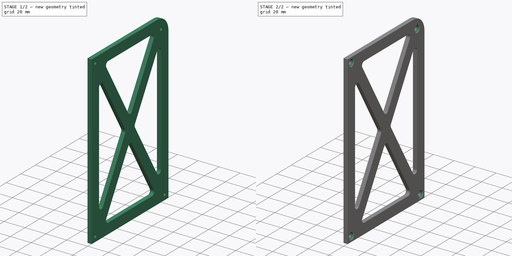
[diagram: build sequence overview — one tinted view per stage of 2, left to right]
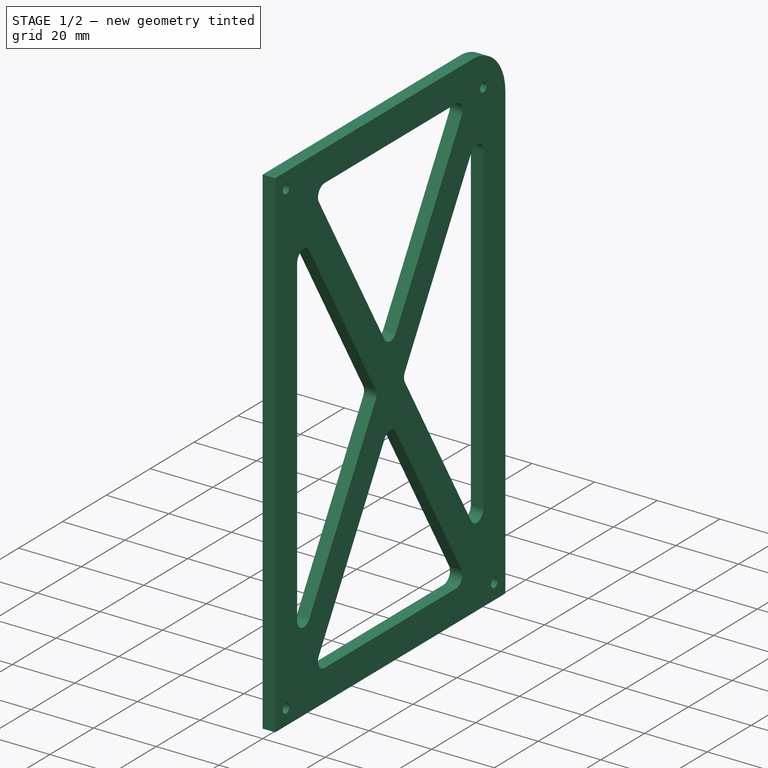
[diagram: stage 1 of 2 — iso view after this stage's code; geometry added in this stage tinted green]
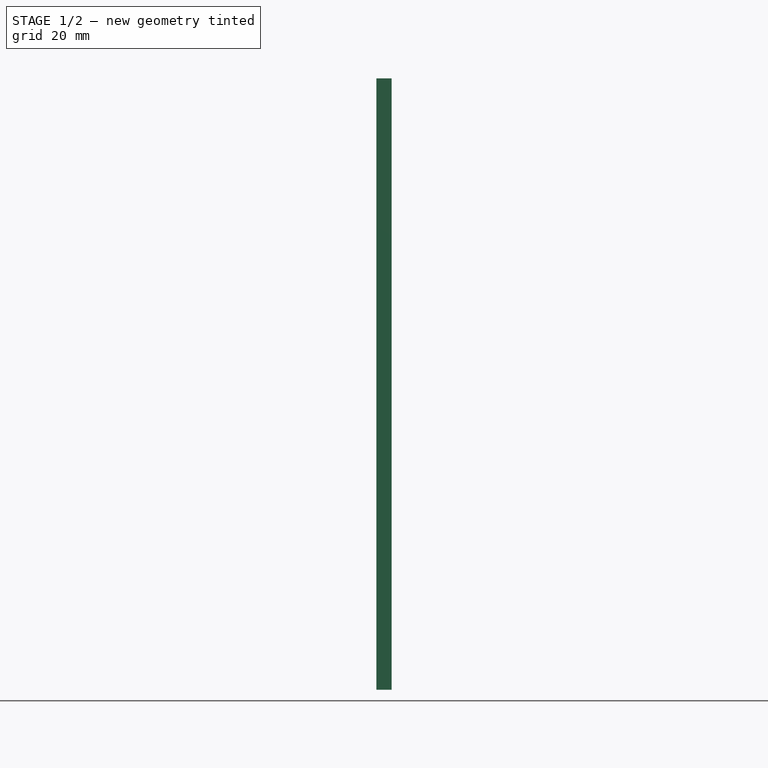
[diagram: stage 1 of 2 — front view after this stage's code; geometry added in this stage tinted green]
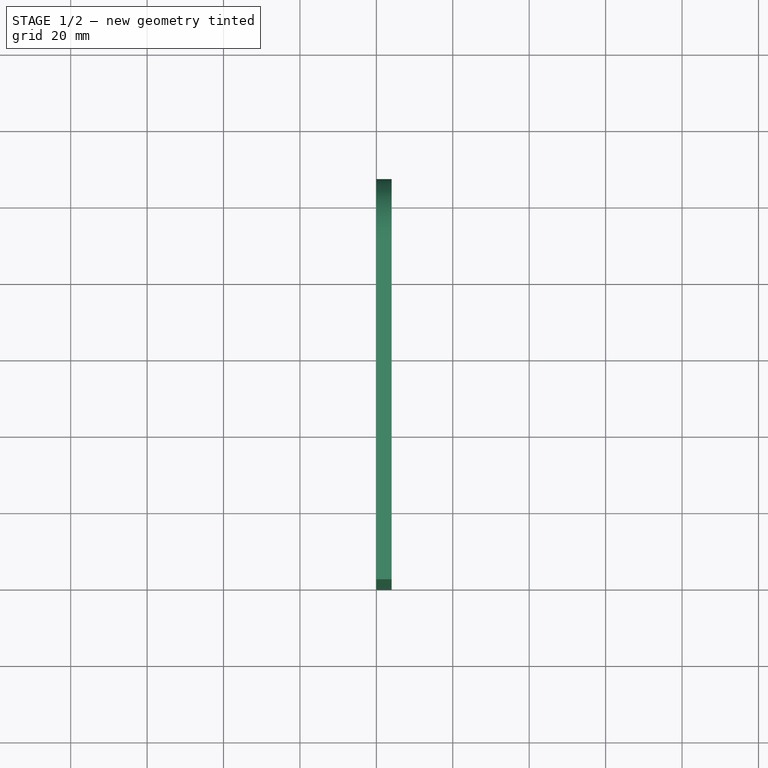
[diagram: stage 1 of 2 — top view after this stage's code; geometry added in this stage tinted green]
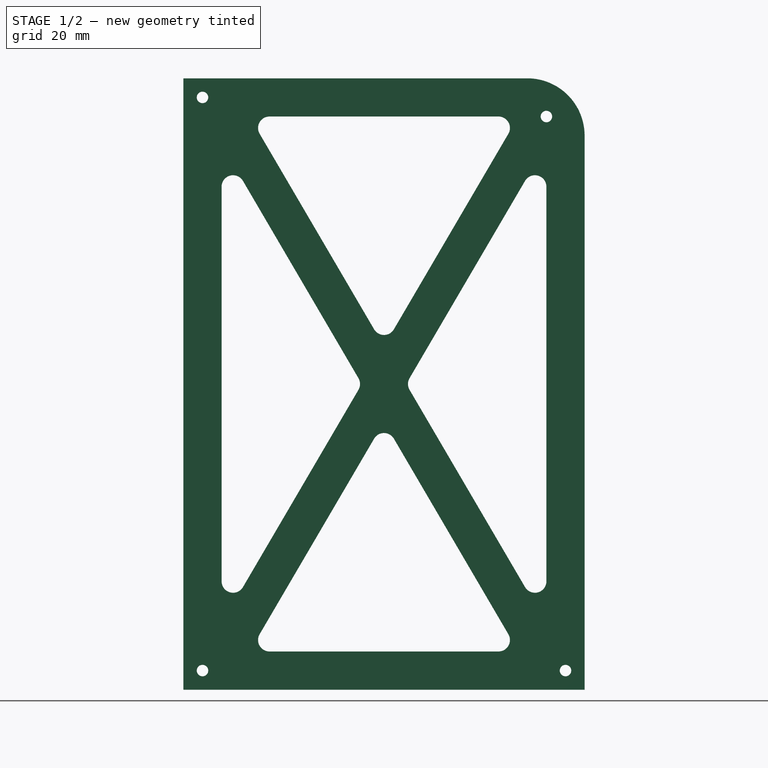
[diagram: stage 1 of 2 — right view after this stage's code; geometry added in this stage tinted green]
FCSTD DOCUMENT  (FreeCAD 1.0R39109 (Git))
Label: sideLeft
License: All rights reserved
LicenseURL: https://en.wikipedia.org/wiki/All_rights_reserved
objects: Sketcher::SketchObject×1, PartDesign::Pad×1, PartDesign::Fillet×1, PartDesign::Chamfer×1, PartDesign::Body×1
note: 12 computed .brp shape members not serialized (recipe doc carries the construction recipe); baked Part::Feature solids carry a one-line shape summary decoded from their .brp

FEATURE [Sketcher::SketchObject] Sketch
  ArcFitTolerance = 1e-06
  AttachmentSupport = -> [YZ_Plane]
  FullyConstrained = true
  MakeInternals = false
  MapMode = 5
  Placement = pos=(0,0,0) rot=(0.57735,0.57735,0.57735;2.0944rad)
  sketch-geometry (35):
    g0: LineSegment StartX=0 StartY=0 StartZ=0 EndX=105 EndY=0 EndZ=0
    g1: LineSegment StartX=0 StartY=160 StartZ=0 EndX=0 EndY=0 EndZ=0
    g2: Circle CenterX=5 CenterY=155 CenterZ=0 NormalX=0 NormalY=0 NormalZ=1 AngleXU=0 Radius=1.5
    g3: Circle CenterX=5 CenterY=5 CenterZ=0 NormalX=0 NormalY=0 NormalZ=1 AngleXU=0 Radius=1.5
    g4: Circle CenterX=100 CenterY=5 CenterZ=0 NormalX=0 NormalY=0 NormalZ=1 AngleXU=0 Radius=1.5
    g5: Circle CenterX=95 CenterY=150 CenterZ=0 NormalX=0 NormalY=0 NormalZ=1 AngleXU=0 Radius=1.5
    g6: LineSegment StartX=17.3087 StartY=10 StartZ=0 EndX=87.6913 EndY=10 EndZ=0
    g7: LineSegment StartX=95 StartY=17.3087 StartZ=0 EndX=95 EndY=142.691 EndZ=0
    g8: LineSegment StartX=87.6913 StartY=150 StartZ=0 EndX=17.3087 EndY=150 EndZ=0
    g9: LineSegment StartX=10 StartY=142.691 StartZ=0 EndX=10 EndY=17.3087 EndZ=0
    g10: ArcOfCircle CenterX=90 CenterY=145 CenterZ=0 NormalX=0 NormalY=0 NormalZ=1 AngleXU=0 Radius=15 StartAngle=8e-16 EndAngle=1.5708
    g11: LineSegment StartX=10 StartY=142.691 StartZ=0 EndX=46.706 EndY=80 EndZ=0
    g12: LineSegment StartX=95 StartY=17.3087 StartZ=0 EndX=58.294 EndY=80 EndZ=0
    g13: LineSegment StartX=87.6913 StartY=150 StartZ=0 EndX=52.5 EndY=89.8957 EndZ=0
    g14: LineSegment StartX=17.3087 StartY=10 StartZ=0 EndX=52.5 EndY=70.1043 EndZ=0
    g15: LineSegment StartX=0 StartY=160 StartZ=0 EndX=90 EndY=160 EndZ=0
    g16: LineSegment StartX=105 StartY=0 StartZ=0 EndX=105 EndY=145 EndZ=0
    g17: LineSegment [constr] StartX=90 StartY=160 StartZ=0 EndX=105 EndY=160 EndZ=0
    g18: LineSegment [constr] StartX=105 StartY=145 StartZ=0 EndX=105 EndY=160 EndZ=0
    g19: LineSegment StartX=46.706 StartY=80 StartZ=0 EndX=10 EndY=17.3087 EndZ=0
    g20: LineSegment StartX=52.5 StartY=89.8957 StartZ=0 EndX=17.3087 EndY=150 EndZ=0
    g21: LineSegment StartX=58.294 StartY=80 StartZ=0 EndX=95 EndY=142.691 EndZ=0
    g22: LineSegment StartX=52.5 StartY=70.1043 StartZ=0 EndX=87.6913 EndY=10 EndZ=0
    g23: LineSegment [constr] StartX=52.5 StartY=70.1043 StartZ=0 EndX=58.294 EndY=80 EndZ=0
    g24: LineSegment [constr] StartX=52.5 StartY=89.8957 StartZ=0 EndX=46.706 EndY=80 EndZ=0
    g25: LineSegment [constr] StartX=46.706 StartY=80 StartZ=0 EndX=52.5 EndY=70.1043 EndZ=0
    g26: LineSegment [constr] StartX=58.294 StartY=80 StartZ=0 EndX=52.5 EndY=89.8957 EndZ=0
    g27: LineSegment [constr] StartX=10 StartY=17.3087 StartZ=0 EndX=10 EndY=10 EndZ=0
    g28: LineSegment [constr] StartX=17.3087 StartY=10 StartZ=0 EndX=10 EndY=10 EndZ=0
    g29: LineSegment [constr] StartX=87.6913 StartY=10 StartZ=0 EndX=95 EndY=10 EndZ=0
    g30: LineSegment [constr] StartX=95 StartY=17.3087 StartZ=0 EndX=95 EndY=10 EndZ=0
    g31: LineSegment [constr] StartX=17.3087 StartY=150 StartZ=0 EndX=10 EndY=150 EndZ=0
    g32: LineSegment [constr] StartX=10 StartY=142.691 StartZ=0 EndX=10 EndY=150 EndZ=0
    g33: LineSegment [constr] StartX=87.6913 StartY=150 StartZ=0 EndX=95 EndY=150 EndZ=0
    g34: LineSegment [constr] StartX=95 StartY=142.691 StartZ=0 EndX=95 EndY=150 EndZ=0
  constraints (99):
    c: Coincident(g1,g0)
    c: Horizontal(g0)
    c: Vertical(g1)
    c: Coincident(g0,g-1)
    c: DistanceY(g1,g1) = 160
    c: DistanceX(g0,g0) = 105
    c: Diameter(g3) = 3
    c: Diameter(g4) = 3
    c: Diameter(g5) = 3
    c: Diameter(g2) = 3
    c: Distance(g0,g6) = 10
    c: Horizontal(g6)
    c: Horizontal(g8)
    c: Vertical(g9)
    c: Vertical(g7)
    c: Distance(g0,g7) = 10
    c: Coincident(g15,g1)
    c: Horizontal(g15)
    c: Coincident(g16,g0)
    c: Vertical(g16)
    c: Coincident(g15,g10)
    c: Coincident(g10,g16)
    c: Horizontal(g17)
    c: Coincident(g18,g10)
    c: Coincident(g18,g17)
    c: Coincident(g17,g10)
    c: Vertical(g18)
    c: Radius(g10) = 15
    c: DistanceX(g17,g17) = 15
    c: DistanceY(g18,g18) = 15
    c: Coincident(g21,g7)
    c: Coincident(g13,g8)
    c: Coincident(g20,g8)
    c: Coincident(g12,g7)
    c: Coincident(g22,g6)
    c: Coincident(g6,g14)
    c: Coincident(g19,g9)
    c: PointOnObject(g13,g20)
    c: PointOnObject(g12,g21)
    c: PointOnObject(g20,g13)
    c: PointOnObject(g14,g22)
    c: PointOnObject(g21,g12)
    c: Coincident(g11,g19)
    c: PointOnObject(g22,g14)
    c: Coincident(g11,g9)
    c: Distance(g15,g8) = 10
    c: Distance(g1,g9) = 10
    c: Parallel(g20,g11)
    c: Parallel(g12,g22)
    c: Parallel(g13,g21)
    c: Parallel(g19,g14)
    c: Coincident(g23,g14)
    c: Coincident(g23,g12)
    c: Coincident(g24,g13)
    c: Coincident(g24,g11)
    c: Coincident(g25,g11)
    c: Coincident(g25,g22)
    c: Coincident(g26,g21)
    c: Coincident(g26,g20)
    c: Coincident(g27,g9)
    c: Vertical(g27)
    c: Coincident(g28,g6)
    c: Horizontal(g28)
    c: Coincident(g29,g6)
    c: Horizontal(g29)
    c: Coincident(g30,g7)
    c: Vertical(g30)
    c: Coincident(g30,g29)
    c: Coincident(g27,g28)
    c: Coincident(g31,g8)
    c: Horizontal(g31)
    c: Coincident(g32,g9)
    c: Vertical(g32)
    c: Coincident(g31,g32)
    c: Coincident(g33,g8)
    c: Horizontal(g33)
    c: Coincident(g34,g7)
    c: Vertical(g34)
    c: Coincident(g33,g34)
    c: Parallel(g20,g26)
    c: Parallel(g26,g12)
    c: Parallel(g21,g24)
    c: Parallel(g24,g23)
    c: Parallel(g23,g19)
    c: Distance(g11,g20) = 10
    c: Distance(g13,g21) = 10
    c: Parallel(g22,g25)
    c: Distance(g4,g16) = 5
    c: Distance(g4,g0) = 5
    c: Distance(g3,g0) = 5
    c: Distance(g3,g1) = 5
    c: Distance(g2,g15) = 5
    c: Distance(g2,g1) = 5
    c: Distance(g5,g18) = 10
    c: Distance(g5,g17) = 10
    c: Equal(g31,g32)
    c: Equal(g29,g30)
    c: Equal(g28,g27)
    c: Equal(g34,g33)
FEATURE [PartDesign::Pad] Pad
  Direction = (1,0,0)
  Length = 4
  Length2 = 10
  Placement = pos=(0,0,0) rot=(1,1,1;2.0944rad)
  Profile = -> Sketch
  ReferenceAxis = -> Sketch [N_Axis]
  Refine = true
  Suppressed = false
  Type = 0
FEATURE [PartDesign::Fillet] Fillet
  Base = -> Pad [Edge35,Edge17,Edge44,Edge29,Edge38,Edge34,Edge25,Edge20,Edge26,Edge43,Edge16,Edge47]
  BaseFeature = -> Pad
  Placement = pos=(0,0,0) rot=(1,1,1;2.0944rad)
  Radius = 3
  Refine = true
  SupportTransform = false
  Suppressed = false
  UseAllEdges = false
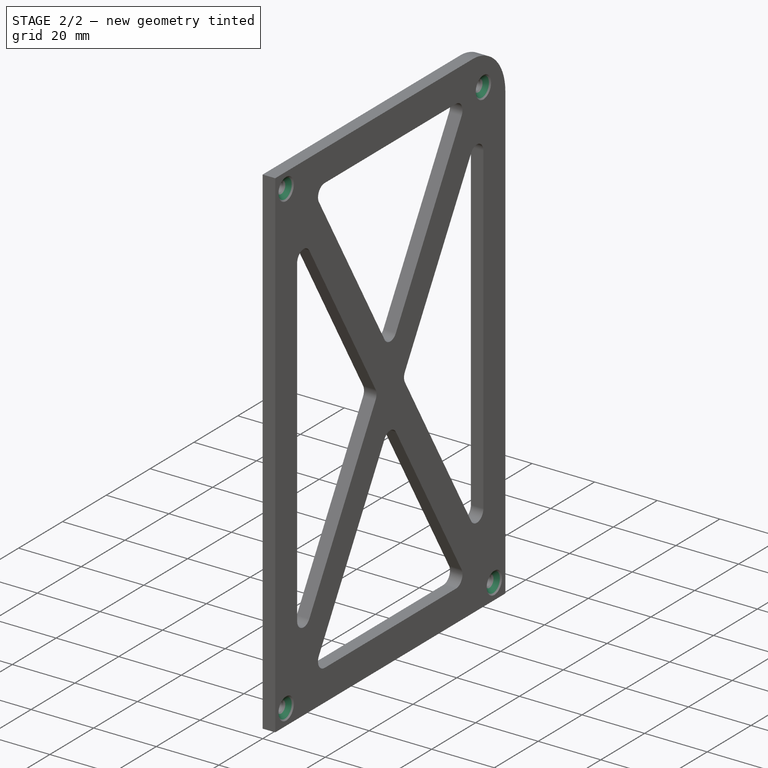
[diagram: stage 2 of 2 — iso view after this stage's code; geometry added in this stage tinted green]
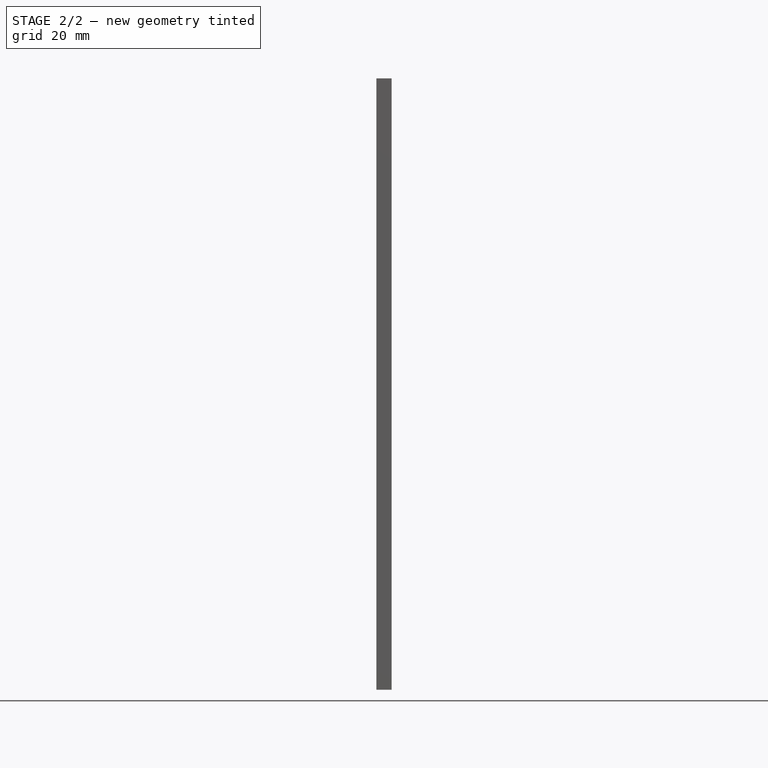
[diagram: stage 2 of 2 — front view after this stage's code; geometry added in this stage tinted green]
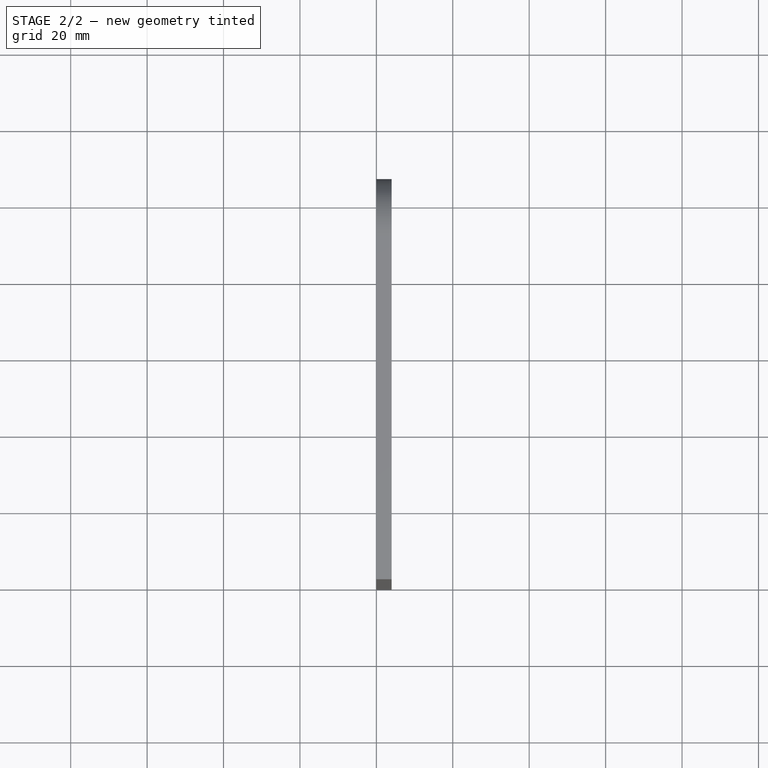
[diagram: stage 2 of 2 — top view after this stage's code; geometry added in this stage tinted green]
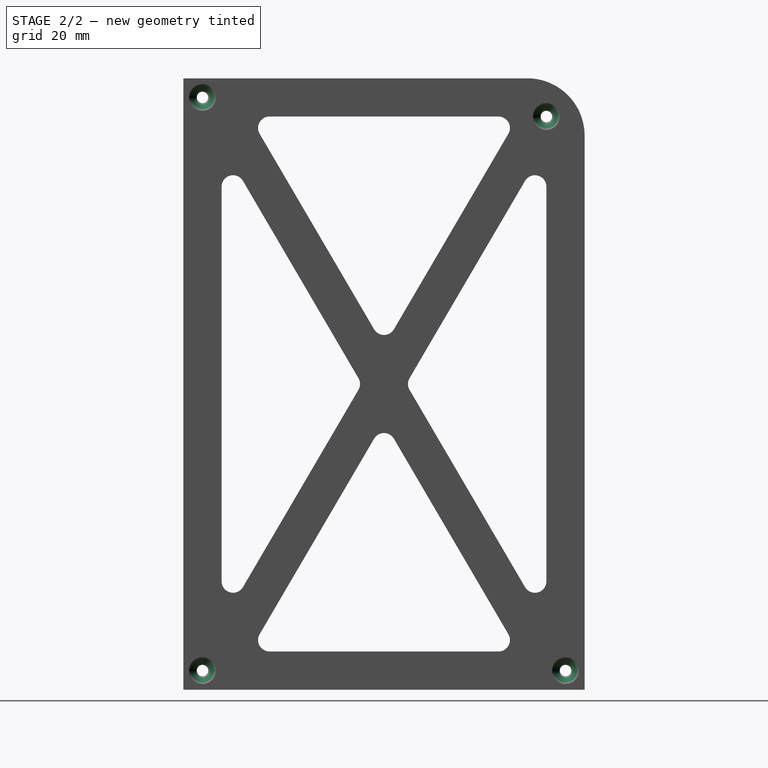
[diagram: stage 2 of 2 — right view after this stage's code; geometry added in this stage tinted green]
FEATURE [PartDesign::Chamfer] Chamfer
  Angle = 45
  Base = -> Fillet [Edge49,Edge50,Edge52,Edge51]
  BaseFeature = -> Fillet
  ChamferType = 0
  FlipDirection = false
  Placement = pos=(0,0,0) rot=(1,1,1;2.0944rad)
  Refine = true
  Size = 2
  Size2 = 1
  SupportTransform = false
  Suppressed = false
  UseAllEdges = false
FEATURE [PartDesign::Body] Body
  AllowCompound = false
  Group = -> [Sketch,Pad,Fillet,Chamfer]
  Origin = -> Origin
  Tip = -> Chamfer
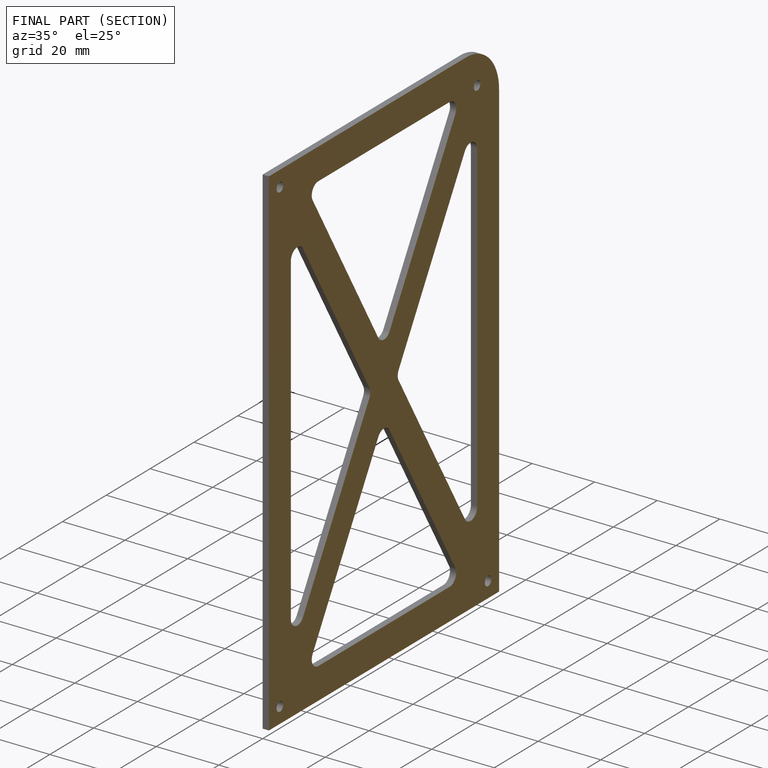
[diagram: finished part — half-section view (interior)]
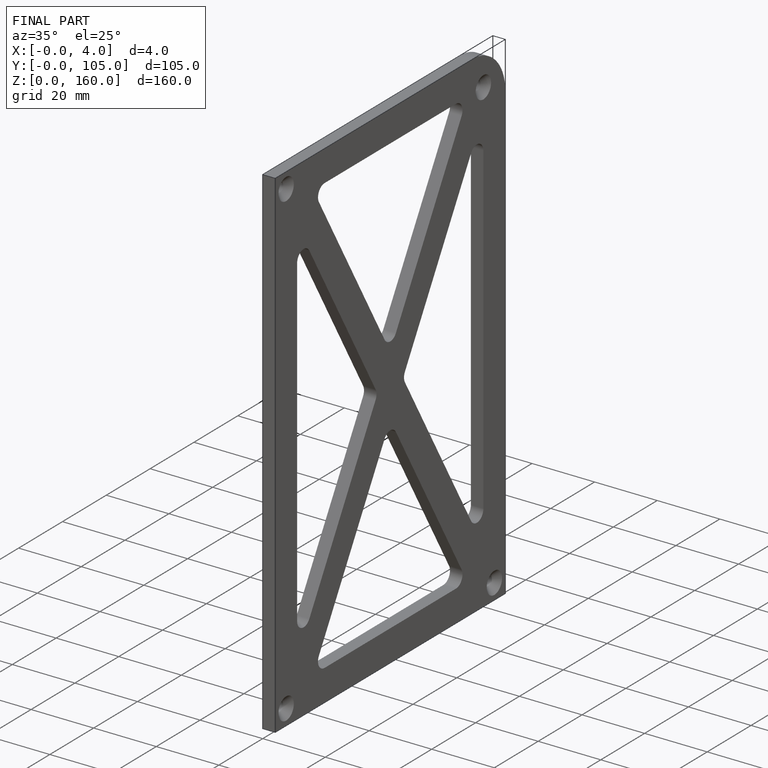
[diagram: finished part — iso view with bounding-box wireframe]
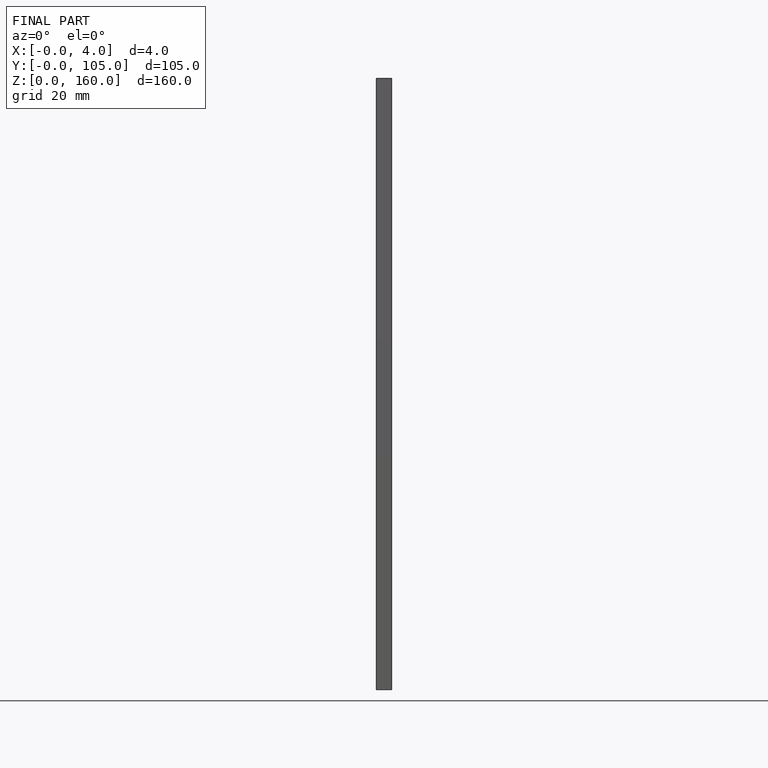
[diagram: finished part — front view with bounding-box wireframe]
